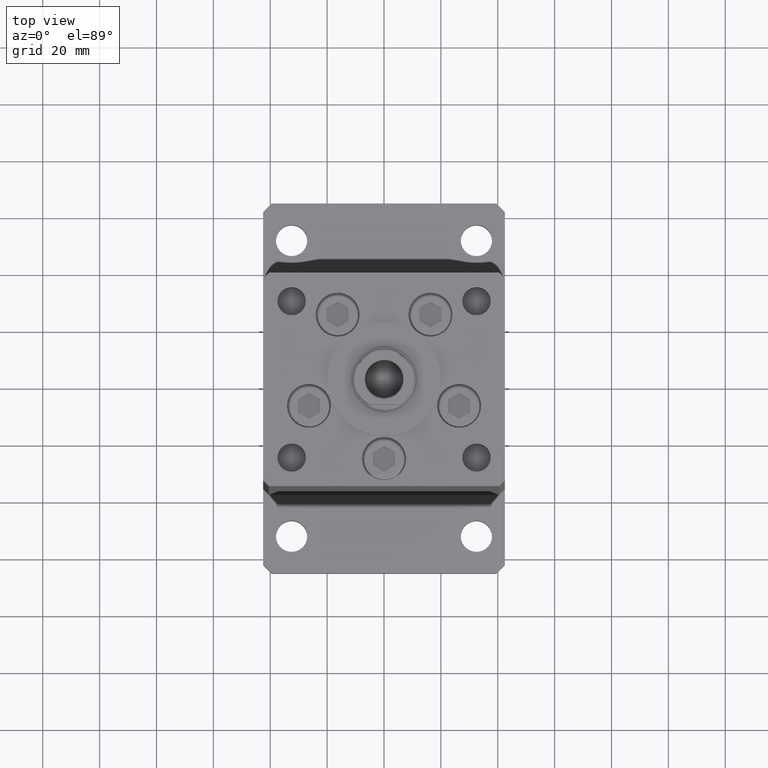
[diagram: clean part render]
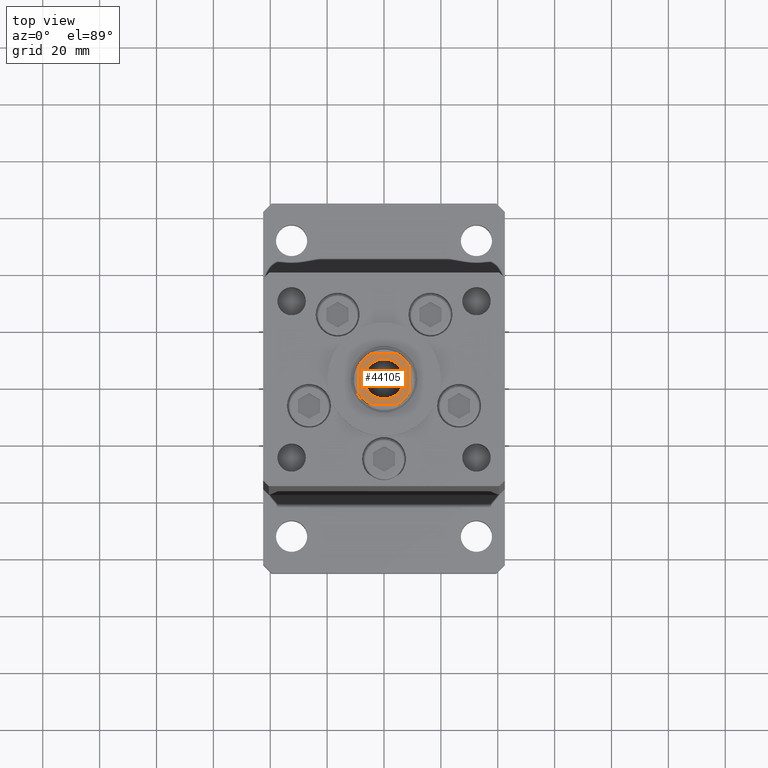
[diagram: same view with one face highlighted and labeled with its STEP entity id]
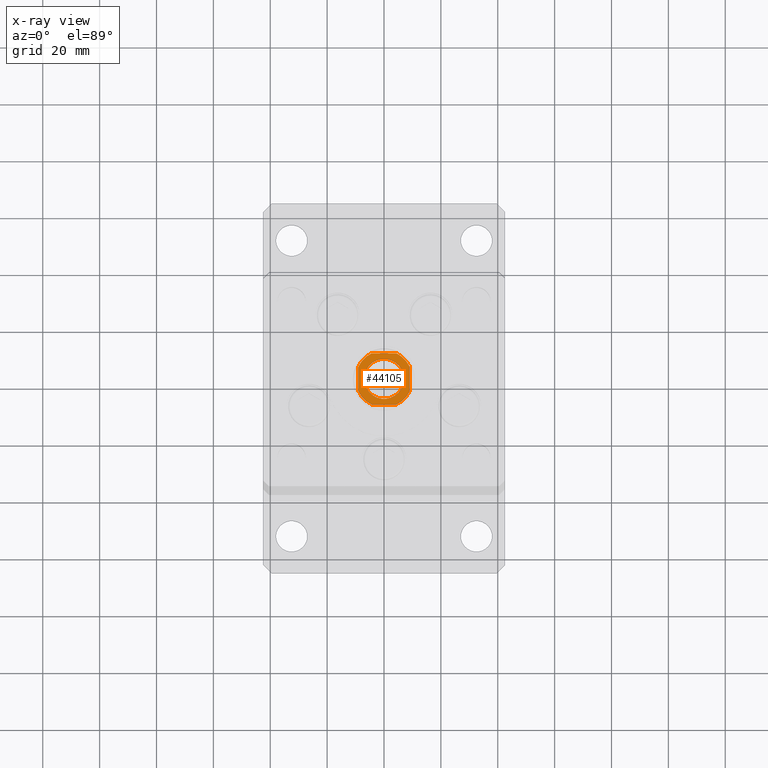
[diagram: x-ray of the same camera — body ghosted, the highlighted face saturated]
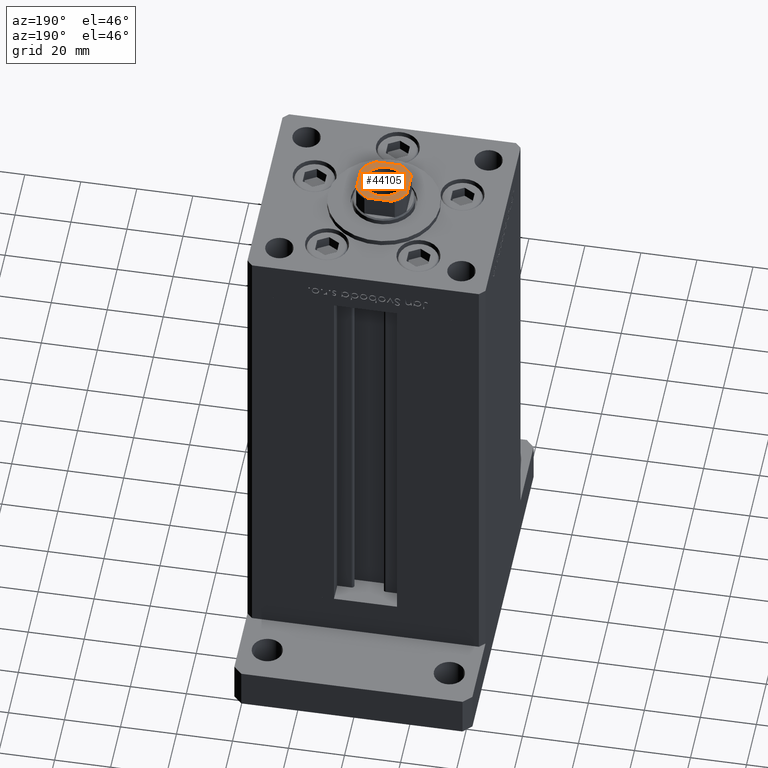
[diagram: same view with one face highlighted and labeled with its STEP entity id]
A machine part, top view. The second image highlights one B-rep face of the part: STEP entity #44105.
The next image is the same camera in x-ray: the body ghosted, the highlighted face saturated — about 0% of this face is hidden behind the body in this view.
A second angle (auxiliary view) of the same face is appended — the face is thin or edge-on in the first view.
In plain terms, the highlighted planar face has unit normal (0, 0, 1).
Its self-contained STEP definition (entity closure, byte-faithful):
#1122 = DIRECTION ( 'NONE',  ( 1.000000000000000000, 0.000000000000000000, 0.000000000000000000 ) ) ;
#1378 = DIRECTION ( 'NONE',  ( -0.000000000000000000, 0.000000000000000000, 1.000000000000000000 ) ) ;
#1644 = CARTESIAN_POINT ( 'NONE',  ( 0.000000000000000000, 0.000000000000000000, 155.7500000000000000 ) ) ;
#3136 = FACE_BOUND ( 'NONE', #28623, .T. ) ;
#4205 = DIRECTION ( 'NONE',  ( 0.000000000000000000, -0.000000000000000000, -1.000000000000000000 ) ) ;
#4497 = CIRCLE ( 'NONE', #36355, 7.050000000000000711 ) ;
#4937 = EDGE_LOOP ( 'NONE', ( #9695, #23684, #50447, #32844, #32846, #34271, #47848, #43749 ) ) ;
#5268 = DIRECTION ( 'NONE',  ( 1.000000000000000000, 0.000000000000000000, 0.000000000000000000 ) ) ;
#5735 = AXIS2_PLACEMENT_3D ( 'NONE', #31810, #28298, #44759 ) ;
#6799 = VECTOR ( 'NONE', #29224, 1000.000000000000000 ) ;
#7184 = VERTEX_POINT ( 'NONE', #38585 ) ;
#8823 = CARTESIAN_POINT ( 'NONE',  ( -8.999999999999998224, -9.000000000000001776, 155.7500000000000000 ) ) ;
#8997 = ORIENTED_EDGE ( 'NONE', *, *, #23394, .T. ) ;
#9695 = ORIENTED_EDGE ( 'NONE', *, *, #46892, .T. ) ;
#9956 = LINE ( 'NONE', #30175, #36908 ) ;
#10871 = EDGE_CURVE ( 'NONE', #37897, #32345, #22291, .T. ) ;
#10880 = CARTESIAN_POINT ( 'NONE',  ( 7.050000000000000711, 0.000000000000000000, 155.7500000000000000 ) ) ;
#12762 = CARTESIAN_POINT ( 'NONE',  ( 4.358898943540671311, -9.000000000000001776, 155.7500000000000000 ) ) ;
#13600 = LINE ( 'NONE', #33274, #6799 ) ;
#14342 = VECTOR ( 'NONE', #37675, 1000.000000000000000 ) ;
#14422 = CARTESIAN_POINT ( 'NONE',  ( -4.358898943540678417, 8.999999999999998224, 155.7500000000000000 ) ) ;
#17531 = DIRECTION ( 'NONE',  ( -1.000000000000000000, -0.000000000000000000, -0.000000000000000000 ) ) ;
#17595 = VERTEX_POINT ( 'NONE', #12762 ) ;
#18453 = ORIENTED_EDGE ( 'NONE', *, *, #44298, .T. ) ;
#18524 = DIRECTION ( 'NONE',  ( -0.000000000000000000, 0.000000000000000000, 1.000000000000000000 ) ) ;
#18721 = AXIS2_PLACEMENT_3D ( 'NONE', #26343, #18524, #51176 ) ;
#19860 = DIRECTION ( 'NONE',  ( 1.000000000000000000, 0.000000000000000000, 0.000000000000000000 ) ) ;
#21998 = EDGE_CURVE ( 'NONE', #48039, #39243, #38015, .T. ) ;
#22291 = CIRCLE ( 'NONE', #34368, 10.00000000000000000 ) ;
#23394 = EDGE_CURVE ( 'NONE', #44580, #33773, #4497, .T. ) ;
#23684 = ORIENTED_EDGE ( 'NONE', *, *, #21998, .T. ) ;
#25326 = VERTEX_POINT ( 'NONE', #31801 ) ;
#26343 = CARTESIAN_POINT ( 'NONE',  ( 0.000000000000000000, 0.000000000000000000, 155.7500000000000000 ) ) ;
#28182 = DIRECTION ( 'NONE',  ( 1.000000000000000000, 0.000000000000000000, 0.000000000000000000 ) ) ;
#28276 = CARTESIAN_POINT ( 'NONE',  ( -9.000000000000000000, -4.358898943540675752, 155.7500000000000000 ) ) ;
#28298 = DIRECTION ( 'NONE',  ( -0.000000000000000000, 0.000000000000000000, 1.000000000000000000 ) ) ;
#28623 = EDGE_LOOP ( 'NONE', ( #8997, #18453 ) ) ;
#29224 = DIRECTION ( 'NONE',  ( -9.637352644315595243E-17, 1.000000000000000000, -0.000000000000000000 ) ) ;
#29809 = CIRCLE ( 'NONE', #42703, 7.050000000000000711 ) ;
#30175 = CARTESIAN_POINT ( 'NONE',  ( -9.000000000000000000, 8.999999999999998224, 155.7500000000000000 ) ) ;
#31305 = LINE ( 'NONE', #48845, #51418 ) ;
#31701 = DIRECTION ( 'NONE',  ( -0.000000000000000000, 0.000000000000000000, 1.000000000000000000 ) ) ;
#31801 = CARTESIAN_POINT ( 'NONE',  ( 9.000000000000001776, -4.358898943540675752, 155.7500000000000000 ) ) ;
#31810 = CARTESIAN_POINT ( 'NONE',  ( 0.000000000000000000, 0.000000000000000000, 155.7500000000000000 ) ) ;
#32268 = CARTESIAN_POINT ( 'NONE',  ( 0.000000000000000000, 0.000000000000000000, 155.7500000000000000 ) ) ;
#32345 = VERTEX_POINT ( 'NONE', #34344 ) ;
#32844 = ORIENTED_EDGE ( 'NONE', *, *, #41332, .T. ) ;
#32846 = ORIENTED_EDGE ( 'NONE', *, *, #52352, .T. ) ;
#33030 = CARTESIAN_POINT ( 'NONE',  ( 9.000000000000000000, 4.358898943540675752, 155.7500000000000000 ) ) ;
#33064 = DIRECTION ( 'NONE',  ( -0.000000000000000000, 0.000000000000000000, 1.000000000000000000 ) ) ;
#33274 = CARTESIAN_POINT ( 'NONE',  ( 9.000000000000000000, 8.999999999999998224, 155.7500000000000000 ) ) ;
#33773 = VERTEX_POINT ( 'NONE', #35890 ) ;
#33890 = LINE ( 'NONE', #8823, #14342 ) ;
#34223 = AXIS2_PLACEMENT_3D ( 'NONE', #40324, #31701, #28182 ) ;
#34233 = VERTEX_POINT ( 'NONE', #33030 ) ;
#34271 = ORIENTED_EDGE ( 'NONE', *, *, #48286, .T. ) ;
#34344 = CARTESIAN_POINT ( 'NONE',  ( -9.000000000000000000, 4.358898943540674864, 155.7500000000000000 ) ) ;
#34368 = AXIS2_PLACEMENT_3D ( 'NONE', #32268, #33064, #19860 ) ;
#35890 = CARTESIAN_POINT ( 'NONE',  ( -7.050000000000000711, 8.633759933988840961E-16, 155.7500000000000000 ) ) ;
#36031 = PLANE ( 'NONE',  #34223 ) ;
#36355 = AXIS2_PLACEMENT_3D ( 'NONE', #52848, #40155, #49061 ) ;
#36908 = VECTOR ( 'NONE', #17531, 1000.000000000000000 ) ;
#37675 = DIRECTION ( 'NONE',  ( 1.000000000000000000, 0.000000000000000000, 0.000000000000000000 ) ) ;
#37679 = CIRCLE ( 'NONE', #18721, 10.00000000000000000 ) ;
#37897 = VERTEX_POINT ( 'NONE', #14422 ) ;
#38015 = CIRCLE ( 'NONE', #50955, 10.00000000000000000 ) ;
#38100 = CARTESIAN_POINT ( 'NONE',  ( -4.358898943540671311, -9.000000000000001776, 155.7500000000000000 ) ) ;
#38585 = CARTESIAN_POINT ( 'NONE',  ( 4.358898943540677529, 8.999999999999998224, 155.7500000000000000 ) ) ;
#39243 = VERTEX_POINT ( 'NONE', #38100 ) ;
#40155 = DIRECTION ( 'NONE',  ( 0.000000000000000000, -0.000000000000000000, -1.000000000000000000 ) ) ;
#40324 = CARTESIAN_POINT ( 'NONE',  ( 0.000000000000000000, 0.000000000000000000, 155.7500000000000000 ) ) ;
#41332 = EDGE_CURVE ( 'NONE', #17595, #25326, #51344, .T. ) ;
#42484 = EDGE_CURVE ( 'NONE', #39243, #17595, #33890, .T. ) ;
#42703 = AXIS2_PLACEMENT_3D ( 'NONE', #50034, #4205, #5268 ) ;
#43749 = ORIENTED_EDGE ( 'NONE', *, *, #10871, .T. ) ;
#44105 = ADVANCED_FACE ( 'NONE', ( #3136, #44910 ), #36031, .T. ) ;
#44298 = EDGE_CURVE ( 'NONE', #33773, #44580, #29809, .T. ) ;
#44580 = VERTEX_POINT ( 'NONE', #10880 ) ;
#44759 = DIRECTION ( 'NONE',  ( 1.000000000000000000, 0.000000000000000000, 0.000000000000000000 ) ) ;
#44792 = DIRECTION ( 'NONE',  ( 9.637352644315595243E-17, -1.000000000000000000, 0.000000000000000000 ) ) ;
#44910 = FACE_OUTER_BOUND ( 'NONE', #4937, .T. ) ;
#46892 = EDGE_CURVE ( 'NONE', #32345, #48039, #31305, .T. ) ;
#47848 = ORIENTED_EDGE ( 'NONE', *, *, #51602, .T. ) ;
#48039 = VERTEX_POINT ( 'NONE', #28276 ) ;
#48286 = EDGE_CURVE ( 'NONE', #34233, #7184, #37679, .T. ) ;
#48845 = CARTESIAN_POINT ( 'NONE',  ( -9.000000000000000000, 8.999999999999998224, 155.7500000000000000 ) ) ;
#49061 = DIRECTION ( 'NONE',  ( 1.000000000000000000, 0.000000000000000000, 0.000000000000000000 ) ) ;
#50034 = CARTESIAN_POINT ( 'NONE',  ( 0.000000000000000000, 0.000000000000000000, 155.7500000000000000 ) ) ;
#50447 = ORIENTED_EDGE ( 'NONE', *, *, #42484, .T. ) ;
#50955 = AXIS2_PLACEMENT_3D ( 'NONE', #1644, #1378, #1122 ) ;
#51176 = DIRECTION ( 'NONE',  ( 1.000000000000000000, 0.000000000000000000, 0.000000000000000000 ) ) ;
#51344 = CIRCLE ( 'NONE', #5735, 10.00000000000000000 ) ;
#51418 = VECTOR ( 'NONE', #44792, 1000.000000000000000 ) ;
#51602 = EDGE_CURVE ( 'NONE', #7184, #37897, #9956, .T. ) ;
#52352 = EDGE_CURVE ( 'NONE', #25326, #34233, #13600, .T. ) ;
#52848 = CARTESIAN_POINT ( 'NONE',  ( 0.000000000000000000, 0.000000000000000000, 155.7500000000000000 ) ) ;